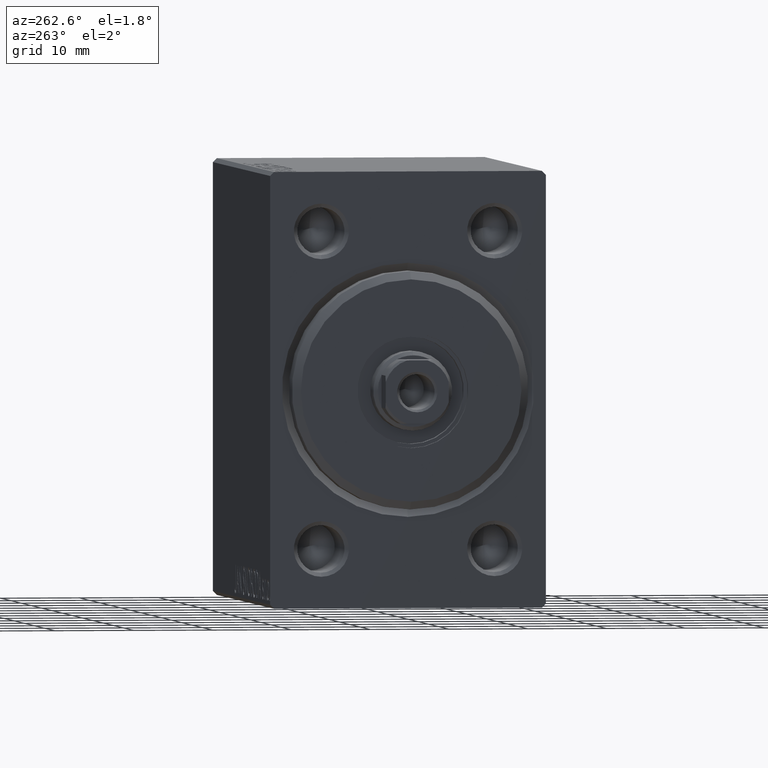
[diagram: clean part render]
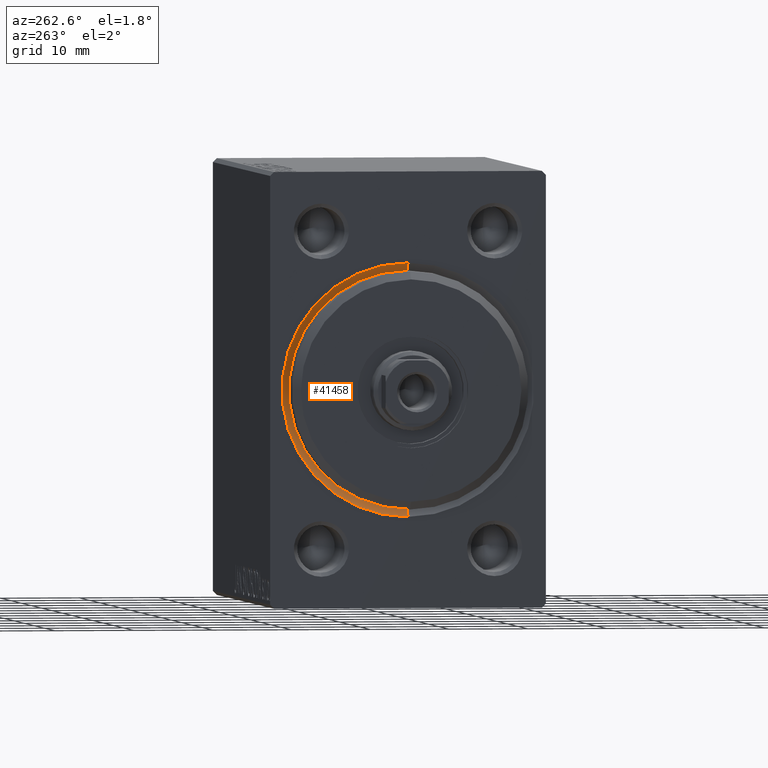
[diagram: same view with one face highlighted and labeled with its STEP entity id]
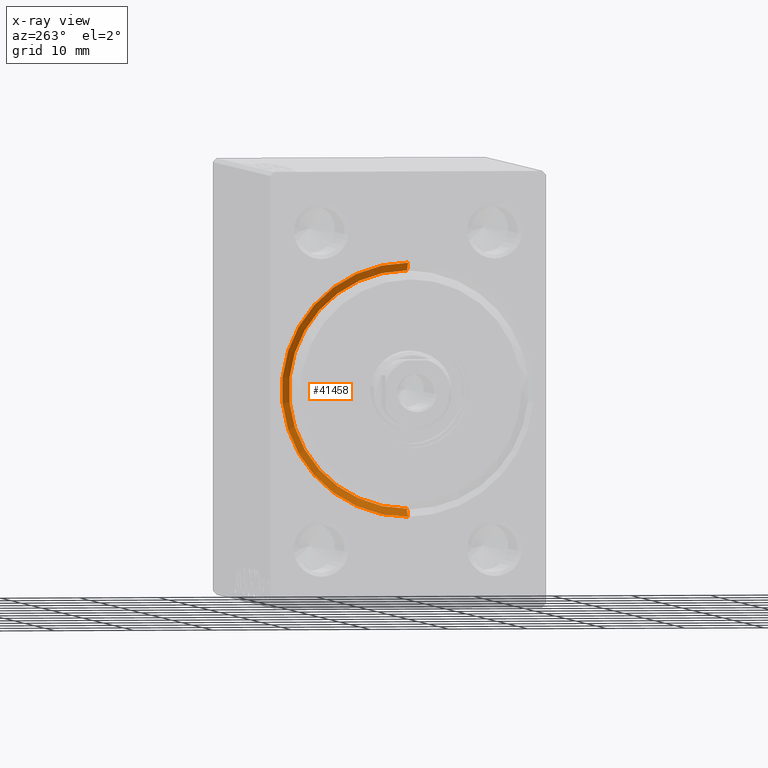
[diagram: x-ray of the same camera — body ghosted, the highlighted face saturated]
A machine part, auxiliary view. The second image highlights one B-rep face of the part: STEP entity #41458.
The next image is the same camera in x-ray: the body ghosted, the highlighted face saturated — about 0% of this face is hidden behind the body in this view.
In plain terms, the highlighted conical surface has half-angle 45 deg.
Its self-contained STEP definition (entity closure, byte-faithful):
#180 = CARTESIAN_POINT ( 'NONE',  ( 1.000000000000013101, 0.000000000000000000, 0.000000000000000000 ) ) ;
#605 = CARTESIAN_POINT ( 'NONE',  ( 1.000000000000013101, 0.000000000000000000, 15.00000000000000000 ) ) ;
#1087 = DIRECTION ( 'NONE',  ( 1.000000000000000000, 0.000000000000000000, 0.000000000000000000 ) ) ;
#7002 = CARTESIAN_POINT ( 'NONE',  ( 0.000000000000000000, 0.000000000000000000, 16.00000000000001421 ) ) ;
#7517 = CIRCLE ( 'NONE', #36052, 15.00000000000000000 ) ;
#8636 = DIRECTION ( 'NONE',  ( -0.7071067811865469066, 0.000000000000000000, 0.7071067811865481278 ) ) ;
#9970 = EDGE_LOOP ( 'NONE', ( #19885, #27263, #34615, #42973 ) ) ;
#10000 = DIRECTION ( 'NONE',  ( 0.000000000000000000, 0.000000000000000000, -1.000000000000000000 ) ) ;
#12426 = CARTESIAN_POINT ( 'NONE',  ( 1.000000000000013101, 0.000000000000000000, 15.00000000000000000 ) ) ;
#13075 = AXIS2_PLACEMENT_3D ( 'NONE', #26049, #29401, #39225 ) ;
#15325 = VECTOR ( 'NONE', #23764, 1000.000000000000114 ) ;
#17048 = CARTESIAN_POINT ( 'NONE',  ( 1.000000000000013101, 1.836970198721029589E-15, -15.00000000000000000 ) ) ;
#17817 = DIRECTION ( 'NONE',  ( 0.000000000000000000, 0.000000000000000000, -1.000000000000000000 ) ) ;
#19885 = ORIENTED_EDGE ( 'NONE', *, *, #27046, .F. ) ;
#21736 = AXIS2_PLACEMENT_3D ( 'NONE', #42181, #1087, #17817 ) ;
#23330 = LINE ( 'NONE', #17048, #15325 ) ;
#23764 = DIRECTION ( 'NONE',  ( -0.7071067811865469066, 8.659560562354940254E-17, -0.7071067811865481278 ) ) ;
#23850 = DIRECTION ( 'NONE',  ( -1.000000000000000000, 0.000000000000000000, 0.000000000000000000 ) ) ;
#25945 = EDGE_CURVE ( 'NONE', #31769, #26415, #28186, .T. ) ;
#26049 = CARTESIAN_POINT ( 'NONE',  ( 1.000000000000013101, 0.000000000000000000, 0.000000000000000000 ) ) ;
#26415 = VERTEX_POINT ( 'NONE', #7002 ) ;
#27046 = EDGE_CURVE ( 'NONE', #42615, #31769, #23330, .T. ) ;
#27263 = ORIENTED_EDGE ( 'NONE', *, *, #27749, .F. ) ;
#27749 = EDGE_CURVE ( 'NONE', #40069, #42615, #7517, .T. ) ;
#28186 = CIRCLE ( 'NONE', #21736, 16.00000000000001421 ) ;
#29401 = DIRECTION ( 'NONE',  ( -1.000000000000000000, 0.000000000000000000, 0.000000000000000000 ) ) ;
#31696 = VECTOR ( 'NONE', #8636, 1000.000000000000114 ) ;
#31769 = VERTEX_POINT ( 'NONE', #36658 ) ;
#32090 = FACE_OUTER_BOUND ( 'NONE', #9970, .T. ) ;
#34615 = ORIENTED_EDGE ( 'NONE', *, *, #42437, .T. ) ;
#36052 = AXIS2_PLACEMENT_3D ( 'NONE', #180, #23850, #10000 ) ;
#36658 = CARTESIAN_POINT ( 'NONE',  ( 0.000000000000000000, 1.959434878635766709E-15, -16.00000000000001421 ) ) ;
#38047 = CONICAL_SURFACE ( 'NONE', #13075, 15.00000000000000000, 0.7853981633974491672 ) ;
#39020 = LINE ( 'NONE', #12426, #31696 ) ;
#39225 = DIRECTION ( 'NONE',  ( 0.000000000000000000, 0.000000000000000000, 1.000000000000000000 ) ) ;
#40069 = VERTEX_POINT ( 'NONE', #605 ) ;
#40545 = CARTESIAN_POINT ( 'NONE',  ( 1.000000000000013101, 1.836970198721029589E-15, -15.00000000000000000 ) ) ;
#41458 = ADVANCED_FACE ( 'NONE', ( #32090 ), #38047, .F. ) ;
#42181 = CARTESIAN_POINT ( 'NONE',  ( 0.000000000000000000, 0.000000000000000000, 0.000000000000000000 ) ) ;
#42437 = EDGE_CURVE ( 'NONE', #40069, #26415, #39020, .T. ) ;
#42615 = VERTEX_POINT ( 'NONE', #40545 ) ;
#42973 = ORIENTED_EDGE ( 'NONE', *, *, #25945, .F. ) ;